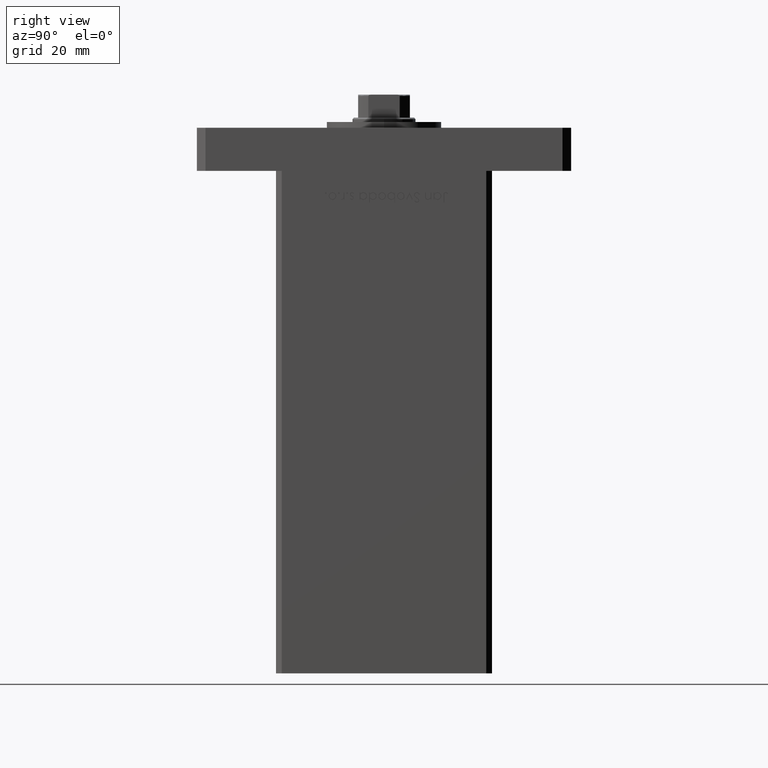
[diagram: clean part render]
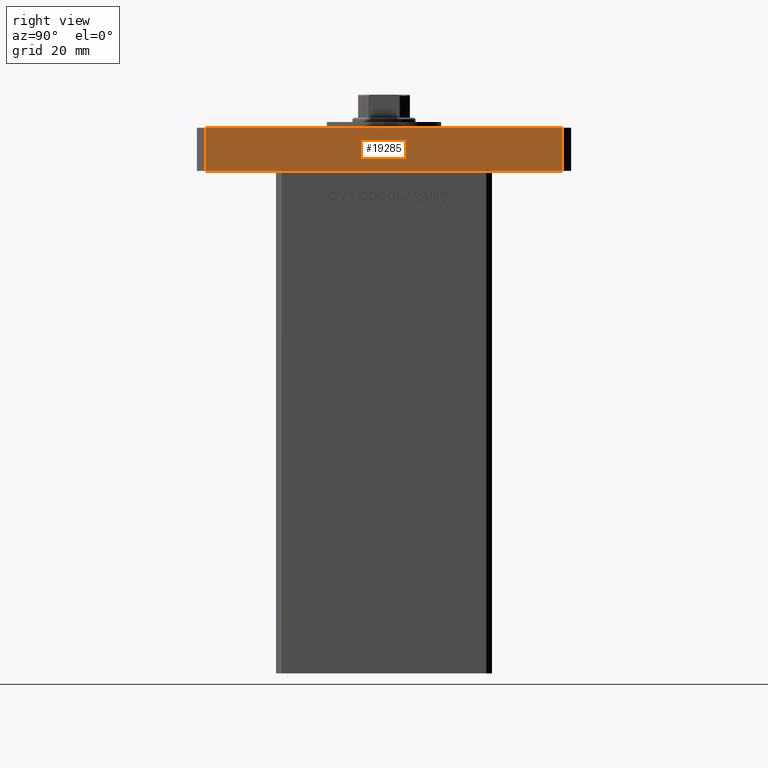
[diagram: same view with one face highlighted and labeled with its STEP entity id]
A machine part, right view. The second image highlights one B-rep face of the part: STEP entity #19285.
In plain terms, the highlighted planar face has unit normal (-1, 0, 0).
Its self-contained STEP definition (entity closure, byte-faithful):
#2707 = LINE ( 'NONE', #23343, #6322 ) ;
#3375 = CARTESIAN_POINT ( 'NONE',  ( 42.50000000000000000, 62.00000000000000711, 0.000000000000000000 ) ) ;
#3532 = ORIENTED_EDGE ( 'NONE', *, *, #4887, .T. ) ;
#4457 = EDGE_LOOP ( 'NONE', ( #9158, #23567, #12444, #3532 ) ) ;
#4720 = DIRECTION ( 'NONE',  ( -1.000000000000000000, 0.000000000000000000, 0.000000000000000000 ) ) ;
#4887 = EDGE_CURVE ( 'NONE', #43738, #13450, #31810, .T. ) ;
#5329 = AXIS2_PLACEMENT_3D ( 'NONE', #12858, #4720, #9848 ) ;
#5777 = EDGE_CURVE ( 'NONE', #43738, #20155, #2707, .T. ) ;
#6206 = CARTESIAN_POINT ( 'NONE',  ( 42.50000000000000000, -61.99999999999988631, 0.000000000000000000 ) ) ;
#6322 = VECTOR ( 'NONE', #31748, 1000.000000000000000 ) ;
#7254 = EDGE_CURVE ( 'NONE', #20155, #26532, #22542, .T. ) ;
#9158 = ORIENTED_EDGE ( 'NONE', *, *, #13009, .T. ) ;
#9848 = DIRECTION ( 'NONE',  ( 0.000000000000000000, 0.000000000000000000, 1.000000000000000000 ) ) ;
#11632 = CARTESIAN_POINT ( 'NONE',  ( 42.50000000000000000, 62.00000000000000711, 15.00000000000000000 ) ) ;
#12444 = ORIENTED_EDGE ( 'NONE', *, *, #5777, .F. ) ;
#12858 = CARTESIAN_POINT ( 'NONE',  ( 42.50000000000000000, -61.99999999999988631, 15.00000000000000000 ) ) ;
#13009 = EDGE_CURVE ( 'NONE', #13450, #26532, #51580, .T. ) ;
#13450 = VERTEX_POINT ( 'NONE', #6206 ) ;
#15507 = CARTESIAN_POINT ( 'NONE',  ( 42.50000000000000000, -61.99999999999988631, 15.00000000000000000 ) ) ;
#15776 = DIRECTION ( 'NONE',  ( -0.000000000000000000, -0.000000000000000000, -1.000000000000000000 ) ) ;
#16770 = VECTOR ( 'NONE', #39631, 1000.000000000000000 ) ;
#19285 = ADVANCED_FACE ( 'NONE', ( #41619 ), #21005, .F. ) ;
#19297 = DIRECTION ( 'NONE',  ( 0.000000000000000000, 1.000000000000000000, 0.000000000000000000 ) ) ;
#20155 = VERTEX_POINT ( 'NONE', #11632 ) ;
#20864 = VECTOR ( 'NONE', #19297, 1000.000000000000000 ) ;
#21005 = PLANE ( 'NONE',  #5329 ) ;
#22542 = LINE ( 'NONE', #39071, #16770 ) ;
#23343 = CARTESIAN_POINT ( 'NONE',  ( 42.50000000000000000, -61.99999999999988631, 15.00000000000000000 ) ) ;
#23567 = ORIENTED_EDGE ( 'NONE', *, *, #7254, .F. ) ;
#26532 = VERTEX_POINT ( 'NONE', #3375 ) ;
#31748 = DIRECTION ( 'NONE',  ( 0.000000000000000000, 1.000000000000000000, 0.000000000000000000 ) ) ;
#31810 = LINE ( 'NONE', #15507, #47881 ) ;
#39071 = CARTESIAN_POINT ( 'NONE',  ( 42.50000000000000000, 62.00000000000000711, 15.00000000000000000 ) ) ;
#39631 = DIRECTION ( 'NONE',  ( -0.000000000000000000, -0.000000000000000000, -1.000000000000000000 ) ) ;
#41619 = FACE_OUTER_BOUND ( 'NONE', #4457, .T. ) ;
#43738 = VERTEX_POINT ( 'NONE', #48507 ) ;
#47881 = VECTOR ( 'NONE', #15776, 1000.000000000000000 ) ;
#48507 = CARTESIAN_POINT ( 'NONE',  ( 42.50000000000000000, -61.99999999999988631, 15.00000000000000000 ) ) ;
#51580 = LINE ( 'NONE', #52394, #20864 ) ;
#52394 = CARTESIAN_POINT ( 'NONE',  ( 42.50000000000000000, -61.99999999999988631, 0.000000000000000000 ) ) ;